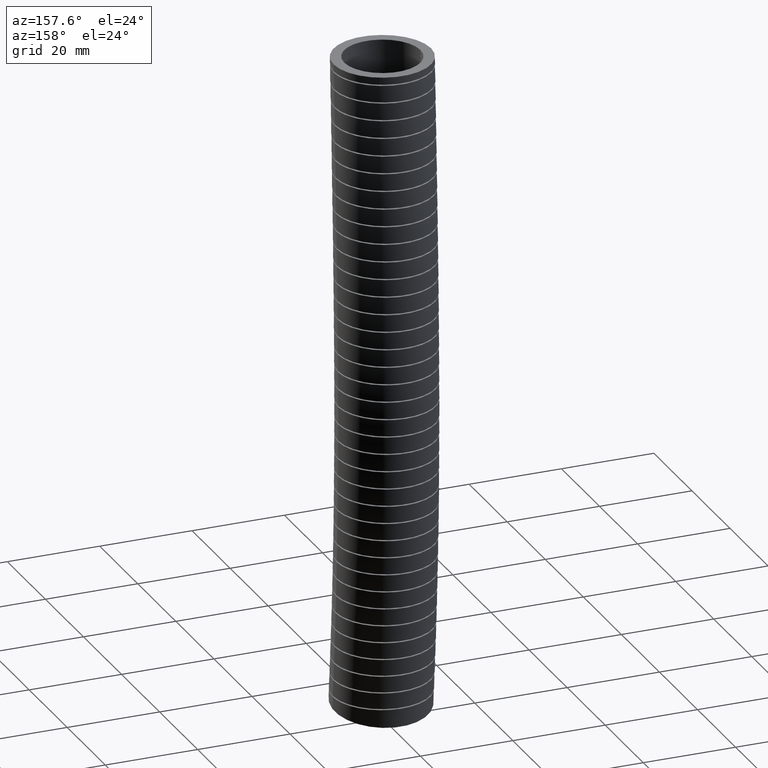
[diagram: clean part render]
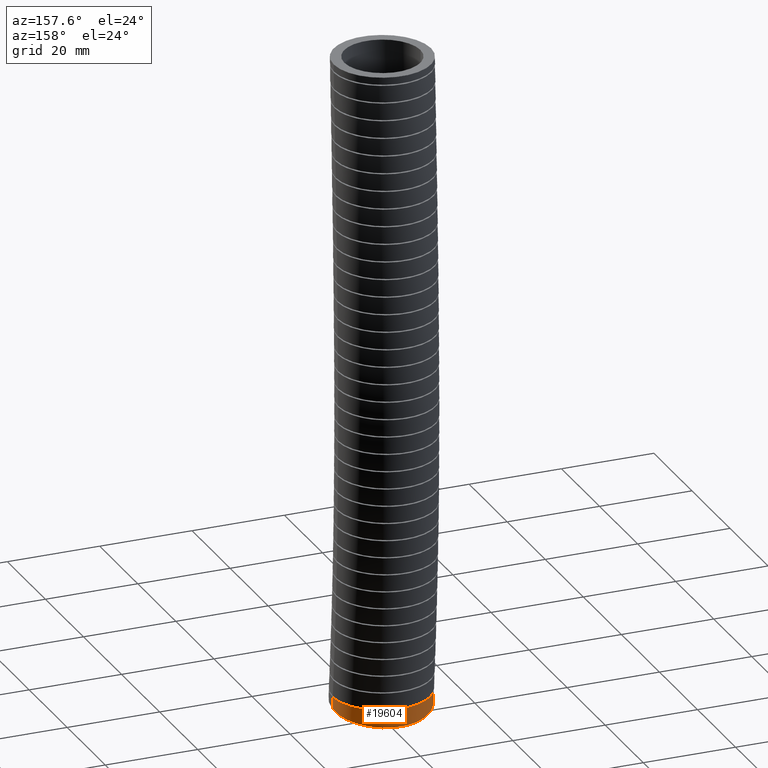
[diagram: same view with one face highlighted and labeled with its STEP entity id]
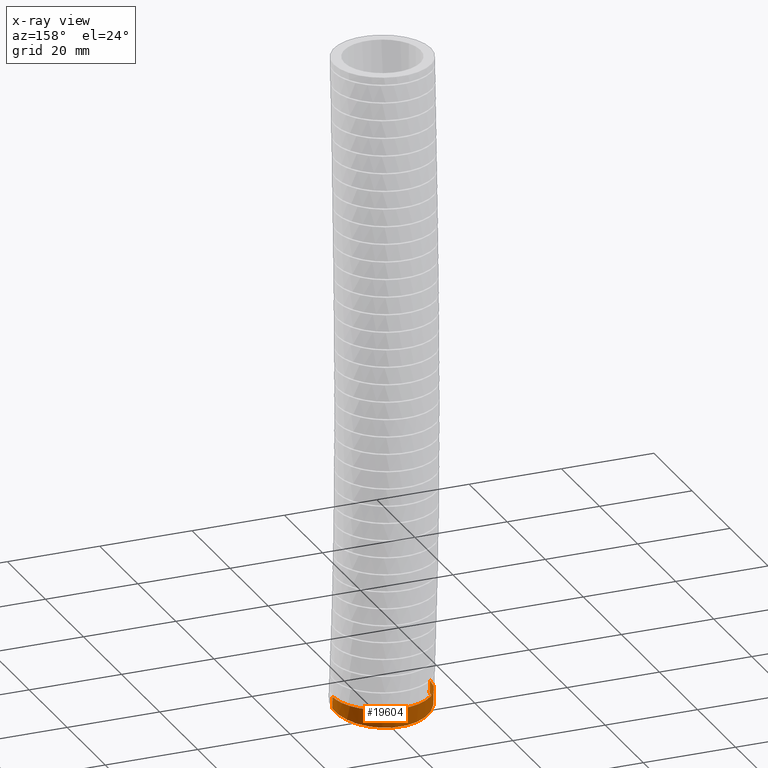
[diagram: x-ray of the same camera — body ghosted, the highlighted face saturated]
A machine part, auxiliary view. The second image highlights one B-rep face of the part: STEP entity #19604.
The next image is the same camera in x-ray: the body ghosted, the highlighted face saturated — about 0% of this face is hidden behind the body in this view.
In plain terms, the highlighted face is a freeform B-spline surface patch.
Its self-contained STEP definition (entity closure, byte-faithful):
#17555 = CARTESIAN_POINT ( 'NONE',  ( -0.4150000000000001500, -0.02030415200967533200, -5.464937736828733100 ) ) ;
#17557 = CARTESIAN_POINT ( 'NONE',  ( 0.4150000000000000900, -0.02030415200967537700, -5.464937736828733100 ) ) ;
#17818 = CARTESIAN_POINT ( 'NONE',  ( 0.4150000000000000400, -0.03000000000000002300, -5.570000000000000300 ) ) ;
#17819 = CARTESIAN_POINT ( 'NONE',  ( 0.4150000000000000900, -0.02676244366892257700, -5.534979479824950300 ) ) ;
#17820 = CARTESIAN_POINT ( 'NONE',  ( 0.4150000000000000900, -0.02352488733784513200, -5.499958959649902100 ) ) ;
#17821 = CARTESIAN_POINT ( 'NONE',  ( 0.4150000000000000900, -0.02030415200967537700, -5.464937736828733100 ) ) ;
#17826 = B_SPLINE_CURVE_WITH_KNOTS ( 'NONE', 3,
 ( #17821, #17820, #17819, #17818 ),
 .UNSPECIFIED., .F., .F.,
 ( 4, 4 ),
 ( 0.9810693797853883300, 1.000000000000000000 ),
 .UNSPECIFIED. ) ;
#17836 = CARTESIAN_POINT ( 'NONE',  ( 0.4150000000000000400, -0.03000000000000002300, -5.570000000000000300 ) ) ;
#17922 = CARTESIAN_POINT ( 'NONE',  ( -0.4150000000000000900, -0.03000000000000011700, -5.570000000000000300 ) ) ;
#17923 = CARTESIAN_POINT ( 'NONE',  ( -0.4150000000000000900, -0.02676244366892252500, -5.534979479824950300 ) ) ;
#17924 = CARTESIAN_POINT ( 'NONE',  ( -0.4150000000000000900, -0.02352488733784508300, -5.499958959649902100 ) ) ;
#17925 = CARTESIAN_POINT ( 'NONE',  ( -0.4150000000000001500, -0.02030415200967533200, -5.464937736828733100 ) ) ;
#17926 = B_SPLINE_CURVE_WITH_KNOTS ( 'NONE', 3,
 ( #17925, #17924, #17923, #17922 ),
 .UNSPECIFIED., .F., .F.,
 ( 4, 4 ),
 ( 0.9810693797853883300, 1.000000000000000000 ),
 .UNSPECIFIED. ) ;
#17927 = CARTESIAN_POINT ( 'NONE',  ( -0.4150000000000000900, -0.03000000000000011700, -5.570000000000000300 ) ) ;
#18152 = CIRCLE ( 'NONE', #18179, 0.4150000000000000400 ) ;
#18159 = CARTESIAN_POINT ( 'NONE',  ( -0.2843518108030317300, 0.2832389120682767800, -5.464937736828732200 ) ) ;
#18160 = CARTESIAN_POINT ( 'NONE',  ( -0.3129964629543030000, 0.2544146891938680600, -5.464937736828734000 ) ) ;
#18161 = CARTESIAN_POINT ( 'NONE',  ( -0.3301518174545022300, 0.2334307995768286900, -5.464937736828734000 ) ) ;
#18162 = CARTESIAN_POINT ( 'NONE',  ( -0.3528839473639375200, 0.1992220450280111900, -5.464937736828734000 ) ) ;
#18163 = CARTESIAN_POINT ( 'NONE',  ( -0.3599007370923444400, 0.1874342931005273900, -5.464937736828734000 ) ) ;
#18164 = CARTESIAN_POINT ( 'NONE',  ( -0.3726431793725242200, 0.1634376636482585700, -5.464937736828734000 ) ) ;
#18165 = CARTESIAN_POINT ( 'NONE',  ( -0.3841605797801603300, 0.1389222280796252900, -5.464937736828726000 ) ) ;
#18166 = CARTESIAN_POINT ( 'NONE',  ( -0.3932574075696797500, 0.1133816782618161200, -5.464937736828726000 ) ) ;
#18167 = CARTESIAN_POINT ( 'NONE',  ( -0.4011236900488373600, 0.08731999161775842700, -5.464937736828728600 ) ) ;
#18168 = CARTESIAN_POINT ( 'NONE',  ( -0.4044533121358698200, 0.07395350088846953900, -5.464937736828729500 ) ) ;
#18169 = CARTESIAN_POINT ( 'NONE',  ( -0.4123836498582588200, 0.03377299597968790000, -5.464937736828728600 ) ) ;
#18170 = CARTESIAN_POINT ( 'NONE',  ( -0.4149999999999999200, 0.006817136731609750800, -5.464937736828729500 ) ) ;
#18171 = CARTESIAN_POINT ( 'NONE',  ( -0.4150000000000001500, -0.02030415200967533200, -5.464937736828733100 ) ) ;
#18174 = B_SPLINE_CURVE_WITH_KNOTS ( 'NONE', 3,
 ( #18171, #18170, #18169, #18168, #18167, #18166, #18165, #18164, #18163, #18162, #18161, #18160, #18159, #18244, #18243, #18242, #18241, #18240, #18239, #18238, #18237, #18236, #18235, #18234, #18233, #18232, #18231, #18230, #18229, #18228, #18227, #18226, #18225, #18224, #18223, #18222, #18221, #18220, #18219, #18218, #18217, #18216, #18215, #18214, #18213, #18212 ),
 .UNSPECIFIED., .F., .F.,
 ( 4, 2, 2, 1, 2, 2, 2, 2, 2, 2, 2, 2, 2, 2, 1, 2, 2, 2, 2, 2, 2, 2, 2, 4 ),
 ( 0.03300817542387049500, 0.03507068869152921200, 0.03610194532535857000, 0.03713320195918793500, 0.03816445859301729300, 0.03919571522684665200, 0.04125822849450536800, 0.04228948512833472600, 0.04332074176216409200, 0.04538325502982282200, 0.04641451166365218000, 0.04744576829748154600, 0.04950828156514026900, 0.05053953819896963400, 0.05157079483279900000, 0.05260205146662835800, 0.05363330810045772300, 0.05569582136811645400, 0.05775833463577518400, 0.05982084790343390700, 0.06085210453726328000, 0.06188336117109263800, 0.06394587443875135400, 0.06600838770641008500 ),
 .UNSPECIFIED. ) ;
#18176 = DIRECTION ( 'NONE',  ( 1.000000000000000000, 0.0000000000000000000, 0.0000000000000000000 ) ) ;
#18177 = DIRECTION ( 'NONE',  ( 0.0000000000000000000, 0.1366496484023476400, 0.9906194393365772600 ) ) ;
#18178 = CARTESIAN_POINT ( 'NONE',  ( 0.0000000000000000000, -0.03000000000000002300, -5.570000000000000300 ) ) ;
#18179 = AXIS2_PLACEMENT_3D ( 'NONE', #18178, #18177, #18176 ) ;
#18212 = CARTESIAN_POINT ( 'NONE',  ( 0.4150000000000000900, -0.02030415200967537700, -5.464937736828733100 ) ) ;
#18213 = CARTESIAN_POINT ( 'NONE',  ( 0.4150000000000000900, 0.007152168105933104700, -5.464937736828733100 ) ) ;
#18214 = CARTESIAN_POINT ( 'NONE',  ( 0.4123188595156612700, 0.03432558934009326300, -5.464937736828733100 ) ) ;
#18215 = CARTESIAN_POINT ( 'NONE',  ( 0.4016142972329826400, 0.08810802152898220000, -5.464937736828733100 ) ) ;
#18216 = CARTESIAN_POINT ( 'NONE',  ( 0.3936781120462551400, 0.1141834646790220700, -5.464937736828737500 ) ) ;
#18217 = CARTESIAN_POINT ( 'NONE',  ( 0.3781627611672625000, 0.1517101854693676800, -5.464937736828737500 ) ) ;
#18218 = CARTESIAN_POINT ( 'NONE',  ( 0.3723801166780773000, 0.1639761120247665000, -5.464937736828729500 ) ) ;
#18219 = CARTESIAN_POINT ( 'NONE',  ( 0.3595696628245869700, 0.1880126794717778300, -5.464937736828728600 ) ) ;
#18220 = CARTESIAN_POINT ( 'NONE',  ( 0.3524987109761316700, 0.1998411650493846800, -5.464937736828730400 ) ) ;
#18221 = CARTESIAN_POINT ( 'NONE',  ( 0.3297878096658077300, 0.2338967669850226200, -5.464937736828730400 ) ) ;
#18222 = CARTESIAN_POINT ( 'NONE',  ( 0.3126246501010410700, 0.2548447191669607800, -5.464937736828732200 ) ) ;
#18223 = CARTESIAN_POINT ( 'NONE',  ( 0.2743143543185935200, 0.2932821348915883900, -5.464937736828730400 ) ) ;
#18224 = CARTESIAN_POINT ( 'NONE',  ( 0.2529418972842249500, 0.3108727321345513000, -5.464937736828729500 ) ) ;
#18225 = CARTESIAN_POINT ( 'NONE',  ( 0.2078427644017134800, 0.3410705229291510800, -5.464937736828730400 ) ) ;
#18226 = CARTESIAN_POINT ( 'NONE',  ( 0.1839810886961442700, 0.3538744639554298200, -5.464937736828734000 ) ) ;
#18227 = CARTESIAN_POINT ( 'NONE',  ( 0.1461851073931672900, 0.3695761954827301900, -5.464937736828734000 ) ) ;
#18228 = CARTESIAN_POINT ( 'NONE',  ( 0.1332100744612124100, 0.3742264519512057400, -5.464937736828734800 ) ) ;
#18229 = CARTESIAN_POINT ( 'NONE',  ( 0.1071433819625567100, 0.3821377759591275100, -5.464937736828733100 ) ) ;
#18230 = CARTESIAN_POINT ( 'NONE',  ( 0.08083201387501169600, 0.3887219955556114900, -5.464937736828733100 ) ) ;
#18231 = CARTESIAN_POINT ( 'NONE',  ( 0.05404013742003395400, 0.3926999691549392700, -5.464937736828733100 ) ) ;
#18232 = CARTESIAN_POINT ( 'NONE',  ( 0.02700543014933792100, 0.3953608442720112900, -5.464937736828733100 ) ) ;
#18233 = CARTESIAN_POINT ( 'NONE',  ( 0.01331345853206151300, 0.3960323631016213800, -5.464937736828729500 ) ) ;
#18234 = CARTESIAN_POINT ( 'NONE',  ( -0.02777722420421341000, 0.3959942776444404500, -5.464937736828728600 ) ) ;
#18235 = CARTESIAN_POINT ( 'NONE',  ( -0.05474890550716051500, 0.3932748825007421100, -5.464937736828732200 ) ) ;
#18236 = CARTESIAN_POINT ( 'NONE',  ( -0.09459419515062922300, 0.3852883538174733400, -5.464937736828734000 ) ) ;
#18237 = CARTESIAN_POINT ( 'NONE',  ( -0.1077731729671331800, 0.3819701727466846000, -5.464937736828730400 ) ) ;
#18238 = CARTESIAN_POINT ( 'NONE',  ( -0.1339199820398185600, 0.3739862148485541500, -5.464937736828728600 ) ) ;
#18239 = CARTESIAN_POINT ( 'NONE',  ( -0.1468608471117495200, 0.3693189979209794400, -5.464937736828730400 ) ) ;
#18240 = CARTESIAN_POINT ( 'NONE',  ( -0.1845096367135260500, 0.3536060251513939400, -5.464937736828732200 ) ) ;
#18241 = CARTESIAN_POINT ( 'NONE',  ( -0.2083456484440795500, 0.3407833880062655600, -5.464937736828732200 ) ) ;
#18242 = CARTESIAN_POINT ( 'NONE',  ( -0.2422080449622950600, 0.3180343045910627400, -5.464937736828733100 ) ) ;
#18243 = CARTESIAN_POINT ( 'NONE',  ( -0.2532351577784151000, 0.3098118847220080500, -5.464937736828734000 ) ) ;
#18244 = CARTESIAN_POINT ( 'NONE',  ( -0.2743148101747914800, 0.2924018516517167800, -5.464937736828733100 ) ) ;
#18588 = FACE_OUTER_BOUND ( 'NONE', #19588, .T. ) ;
#18676 =( BOUNDED_SURFACE ( )  B_SPLINE_SURFACE ( 3, 3, ( 
 ( #18717, #18716, #18715, #18714, #18713, #18712 ),
 ( #18711, #18710, #18709, #18708, #18707, #18706 ),
 ( #18705, #18704, #18703, #18702, #18701, #18700 ),
 ( #18699, #18698, #18697, #18696, #18695, #18694 ),
 ( #18693, #18692, #18691, #18690, #18689, #18688 ),
 ( #18687, #18686, #18685, #18737, #18736, #18735 ),
 ( #18734, #18733, #18732, #18731, #18730, #18729 ) ),
 .UNSPECIFIED., .F., .F., .F. ) 
 B_SPLINE_SURFACE_WITH_KNOTS ( ( 4, 3, 4 ),
 ( 4, 1, 1, 4 ),
 ( 0.0000000000000000000, 0.5000000000000000000, 1.000000000000000000 ),
 ( 0.0000000000000000000, 0.5600000000000000500, 0.8973141982067990300, 1.000000000000000000 ),
 .UNSPECIFIED. ) 
 GEOMETRIC_REPRESENTATION_ITEM ( )  RATIONAL_B_SPLINE_SURFACE ( (
 ( 1.000000000000000000, 1.000000000000000000, 1.000000000000000000, 1.000000000000000000, 1.000000000000000000, 1.000000000000000000),
 ( 0.3333333333333333100, 0.3333333333333333100, 0.3333333333333333100, 0.3333333333333333100, 0.3333333333333332600, 0.3333333333333333100),
 ( 0.3333333333333333100, 0.3333333333333333100, 0.3333333333333333100, 0.3333333333333333100, 0.3333333333333332600, 0.3333333333333333100),
 ( 1.000000000000000000, 1.000000000000000000, 1.000000000000000000, 1.000000000000000000, 1.000000000000000000, 1.000000000000000000),
 ( 0.3333333333333333100, 0.3333333333333333100, 0.3333333333333333100, 0.3333333333333333100, 0.3333333333333332600, 0.3333333333333333100),
 ( 0.3333333333333333100, 0.3333333333333333100, 0.3333333333333333100, 0.3333333333333333100, 0.3333333333333332600, 0.3333333333333333100),
 ( 1.000000000000000000, 1.000000000000000000, 1.000000000000000000, 1.000000000000000000, 1.000000000000000000, 1.000000000000000000) ) ) 
 REPRESENTATION_ITEM ( '' )  SURFACE ( )  );
#18685 = CARTESIAN_POINT ( 'NONE',  ( 0.4150000000000000400, 0.9528682252578860600, -2.732677208711230800 ) ) ;
#18686 = CARTESIAN_POINT ( 'NONE',  ( 0.4150000000000000900, 0.8772143935941071300, -1.050081882658727000 ) ) ;
#18687 = CARTESIAN_POINT ( 'NONE',  ( 0.4150000000000000900, 0.8300000000000001800, 0.0000000000000000000 ) ) ;
#18688 = CARTESIAN_POINT ( 'NONE',  ( -0.4149999999999999200, 0.7922141346493595200, -5.683419208173947200 ) ) ;
#18689 = CARTESIAN_POINT ( 'NONE',  ( -0.4150000000000000400, 0.8104118928973711400, -5.486989566509566700 ) ) ;
#18690 = CARTESIAN_POINT ( 'NONE',  ( -0.4149999999999999200, 0.8883877521622221000, -4.645305119166129900 ) ) ;
#18691 = CARTESIAN_POINT ( 'NONE',  ( -0.4149999999999999200, 0.9528682252578860600, -2.732677208711230800 ) ) ;
#18692 = CARTESIAN_POINT ( 'NONE',  ( -0.4149999999999999200, 0.8772143935941071300, -1.050081882658727000 ) ) ;
#18693 = CARTESIAN_POINT ( 'NONE',  ( -0.4150000000000000400, 0.8300000000000001800, 0.0000000000000000000 ) ) ;
#18694 = CARTESIAN_POINT ( 'NONE',  ( -0.4150000000000000400, -0.02999999999999996800, -5.569999999999998500 ) ) ;
#18695 = CARTESIAN_POINT ( 'NONE',  ( -0.4150000000000000900, -0.01243844818931298000, -5.380037381098891700 ) ) ;
#18696 = CARTESIAN_POINT ( 'NONE',  ( -0.4150000000000000900, 0.06281132015026594200, -4.566063580857106200 ) ) ;
#18697 = CARTESIAN_POINT ( 'NONE',  ( -0.4149999999999999200, 0.1218071073635320100, -2.711443563840852700 ) ) ;
#18698 = CARTESIAN_POINT ( 'NONE',  ( -0.4150000000000000900, 0.04680663936954139500, -1.041922460934817000 ) ) ;
#18699 = CARTESIAN_POINT ( 'NONE',  ( -0.4150000000000000900, 5.082284216461516900E-017, 0.0000000000000000000 ) ) ;
#18700 = CARTESIAN_POINT ( 'NONE',  ( -0.4150000000000000900, -0.8522141346493592500, -5.456580791826050700 ) ) ;
#18701 = CARTESIAN_POINT ( 'NONE',  ( -0.4150000000000002000, -0.8352887892759974800, -5.273085195688222100 ) ) ;
#18702 = CARTESIAN_POINT ( 'NONE',  ( -0.4150000000000000900, -0.7627651118616902700, -4.486822042548080700 ) ) ;
#18703 = CARTESIAN_POINT ( 'NONE',  ( -0.4150000000000000400, -0.7092540105308221500, -2.690209918970475100 ) ) ;
#18704 = CARTESIAN_POINT ( 'NONE',  ( -0.4150000000000000900, -0.7836011148550242600, -1.033763039210906500 ) ) ;
#18705 = CARTESIAN_POINT ( 'NONE',  ( -0.4150000000000000900, -0.8300000000000001800, 0.0000000000000000000 ) ) ;
#18706 = CARTESIAN_POINT ( 'NONE',  ( 0.4150000000000000400, -0.8522141346493592500, -5.456580791826050700 ) ) ;
#18707 = CARTESIAN_POINT ( 'NONE',  ( 0.4150000000000002000, -0.8352887892759974800, -5.273085195688222100 ) ) ;
#18708 = CARTESIAN_POINT ( 'NONE',  ( 0.4150000000000000400, -0.7627651118616902700, -4.486822042548080700 ) ) ;
#18709 = CARTESIAN_POINT ( 'NONE',  ( 0.4150000000000000400, -0.7092540105308221500, -2.690209918970475100 ) ) ;
#18710 = CARTESIAN_POINT ( 'NONE',  ( 0.4150000000000000900, -0.7836011148550242600, -1.033763039210906500 ) ) ;
#18711 = CARTESIAN_POINT ( 'NONE',  ( 0.4150000000000000900, -0.8300000000000001800, 0.0000000000000000000 ) ) ;
#18712 = CARTESIAN_POINT ( 'NONE',  ( 0.4150000000000000400, -0.03000000000000001600, -5.569999999999998500 ) ) ;
#18713 = CARTESIAN_POINT ( 'NONE',  ( 0.4150000000000000900, -0.01243844818931303500, -5.380037381098891700 ) ) ;
#18714 = CARTESIAN_POINT ( 'NONE',  ( 0.4150000000000000900, 0.06281132015026588700, -4.566063580857106200 ) ) ;
#18715 = CARTESIAN_POINT ( 'NONE',  ( 0.4149999999999999200, 0.1218071073635319700, -2.711443563840852700 ) ) ;
#18716 = CARTESIAN_POINT ( 'NONE',  ( 0.4150000000000000900, 0.04680663936954134600, -1.041922460934817000 ) ) ;
#18717 = CARTESIAN_POINT ( 'NONE',  ( 0.4150000000000000900, 0.0000000000000000000, 0.0000000000000000000 ) ) ;
#18729 = CARTESIAN_POINT ( 'NONE',  ( 0.4150000000000000400, -0.03000000000000001600, -5.569999999999998500 ) ) ;
#18730 = CARTESIAN_POINT ( 'NONE',  ( 0.4150000000000000900, -0.01243844818931303500, -5.380037381098891700 ) ) ;
#18731 = CARTESIAN_POINT ( 'NONE',  ( 0.4150000000000000900, 0.06281132015026588700, -4.566063580857106200 ) ) ;
#18732 = CARTESIAN_POINT ( 'NONE',  ( 0.4149999999999999200, 0.1218071073635319700, -2.711443563840852700 ) ) ;
#18733 = CARTESIAN_POINT ( 'NONE',  ( 0.4150000000000000900, 0.04680663936954134600, -1.041922460934817000 ) ) ;
#18734 = CARTESIAN_POINT ( 'NONE',  ( 0.4150000000000000900, 0.0000000000000000000, 0.0000000000000000000 ) ) ;
#18735 = CARTESIAN_POINT ( 'NONE',  ( 0.4150000000000000400, 0.7922141346493595200, -5.683419208173947200 ) ) ;
#18736 = CARTESIAN_POINT ( 'NONE',  ( 0.4150000000000002000, 0.8104118928973711400, -5.486989566509566700 ) ) ;
#18737 = CARTESIAN_POINT ( 'NONE',  ( 0.4150000000000000400, 0.8883877521622221000, -4.645305119166129900 ) ) ;
#19508 = VERTEX_POINT ( 'NONE', #17557 ) ;
#19509 = VERTEX_POINT ( 'NONE', #17555 ) ;
#19535 = VERTEX_POINT ( 'NONE', #17836 ) ;
#19538 = EDGE_CURVE ( 'NONE', #19508, #19535, #17826, .T. ) ;
#19545 = VERTEX_POINT ( 'NONE', #17927 ) ;
#19547 = EDGE_CURVE ( 'NONE', #19509, #19545, #17926, .T. ) ;
#19572 = EDGE_CURVE ( 'NONE', #19535, #19545, #18152, .T. ) ;
#19574 = EDGE_CURVE ( 'NONE', #19509, #19508, #18174, .T. ) ;
#19575 = ORIENTED_EDGE ( 'NONE', *, *, #19538, .T. ) ;
#19576 = ORIENTED_EDGE ( 'NONE', *, *, #19572, .T. ) ;
#19578 = ORIENTED_EDGE ( 'NONE', *, *, #19547, .F. ) ;
#19588 = EDGE_LOOP ( 'NONE', ( #19578, #19589, #19575, #19576 ) ) ;
#19589 = ORIENTED_EDGE ( 'NONE', *, *, #19574, .T. ) ;
#19604 = ADVANCED_FACE ( 'NONE', ( #18588 ), #18676, .T. ) ;